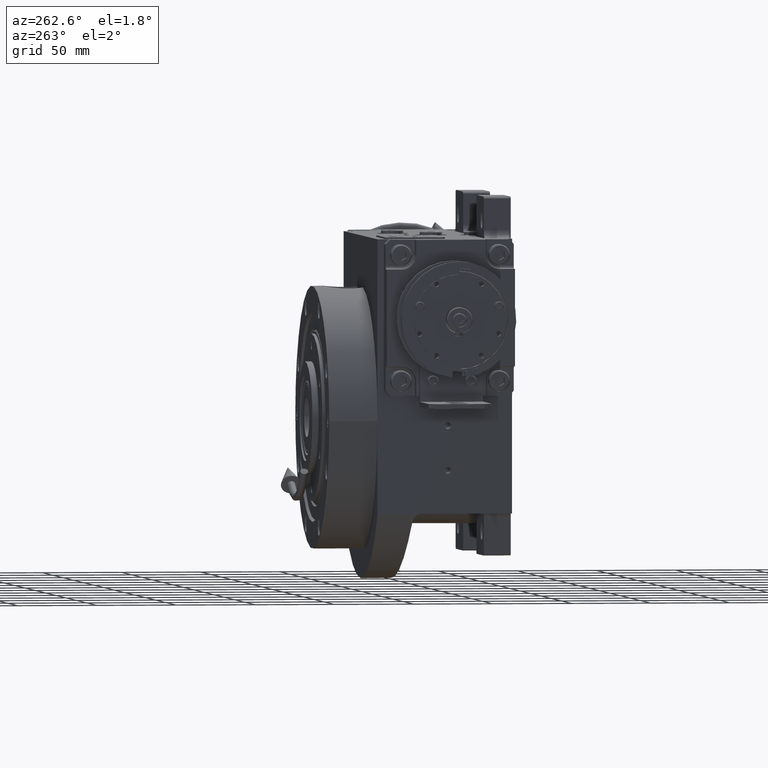
[diagram: clean part render]
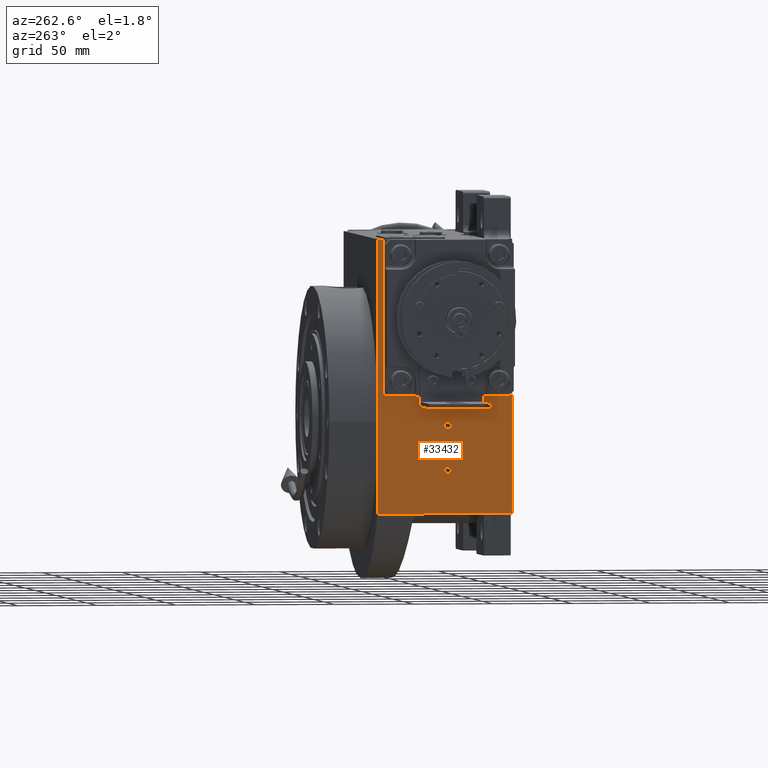
[diagram: same view with one face highlighted and labeled with its STEP entity id]
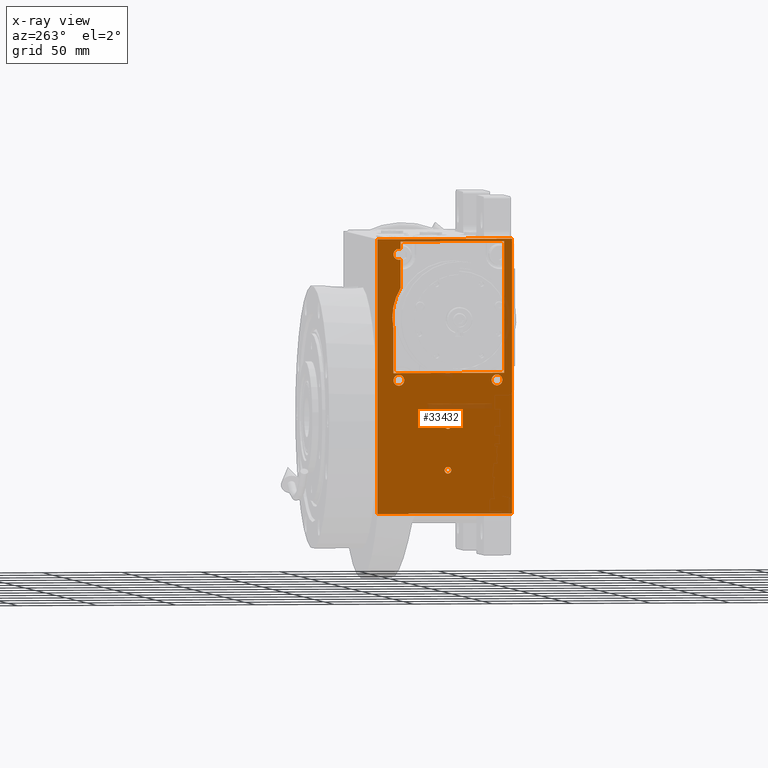
[diagram: x-ray of the same camera — body ghosted, the highlighted face saturated]
A machine part, auxiliary view. The second image highlights one B-rep face of the part: STEP entity #33432.
The next image is the same camera in x-ray: the body ghosted, the highlighted face saturated — about 2% of this face is hidden behind the body in this view.
In plain terms, the highlighted planar face has unit normal (-1, 0, 0).
Its self-contained STEP definition (entity closure, byte-faithful):
#6 = VERTEX_POINT ( 'NONE', #77846 ) ;
#957 = EDGE_CURVE ( 'NONE', #19819, #63341, #46694, .T. ) ;
#1507 = EDGE_CURVE ( 'NONE', #30586, #68291, #85649, .T. ) ;
#2539 = ORIENTED_EDGE ( 'NONE', *, *, #73226, .T. ) ;
#2623 = CARTESIAN_POINT ( 'NONE',  ( -82.49999999999998579, -2.287788930577215323E-09, 29.90816376190140602 ) ) ;
#2908 = AXIS2_PLACEMENT_3D ( 'NONE', #41428, #29656, #61804 ) ;
#3231 = CARTESIAN_POINT ( 'NONE',  ( -82.50000000000000000, 2.220446049250315053E-16, -31.00000000000000000 ) ) ;
#3255 = CARTESIAN_POINT ( 'NONE',  ( -82.49999999999998579, 34.49999998246806143, 58.58309560403285587 ) ) ;
#3499 = DIRECTION ( 'NONE',  ( 0.000000000000000000, 1.000000000000000000, 0.000000000000000000 ) ) ;
#3567 = ORIENTED_EDGE ( 'NONE', *, *, #22349, .T. ) ;
#3826 = DIRECTION ( 'NONE',  ( 0.000000000000000000, -1.000000000000000000, 2.040851148208007998E-15 ) ) ;
#3921 = DIRECTION ( 'NONE',  ( 1.000000000000000000, 0.000000000000000000, 0.000000000000000000 ) ) ;
#4016 = DIRECTION ( 'NONE',  ( 0.000000000000000000, -1.000000000000000000, 0.000000000000000000 ) ) ;
#4045 = DIRECTION ( 'NONE',  ( 0.000000000000000000, 0.000000000000000000, 1.000000000000000000 ) ) ;
#4742 = CARTESIAN_POINT ( 'NONE',  ( -82.50000000000000000, 33.81987246479966558, 74.46412064098198869 ) ) ;
#4854 = DIRECTION ( 'NONE',  ( 1.000000000000000000, 0.000000000000000000, 0.000000000000000000 ) ) ;
#5135 = AXIS2_PLACEMENT_3D ( 'NONE', #37236, #63720, #64555 ) ;
#5156 = VERTEX_POINT ( 'NONE', #54332 ) ;
#5295 = VECTOR ( 'NONE', #57297, 1000.000000000000000 ) ;
#5610 = CARTESIAN_POINT ( 'NONE',  ( -82.49999999999998579, 34.49999998246806143, 58.58309560403285587 ) ) ;
#5798 = ORIENTED_EDGE ( 'NONE', *, *, #53310, .T. ) ;
#6352 = CARTESIAN_POINT ( 'NONE',  ( -82.50000000000000000, 34.19718383847393284, 72.91221821846362161 ) ) ;
#6946 = LINE ( 'NONE', #73347, #61723 ) ;
#6985 = LINE ( 'NONE', #27790, #47606 ) ;
#7185 = CARTESIAN_POINT ( 'NONE',  ( -82.50000000000000000, 34.39999999999999858, 104.5000000000000000 ) ) ;
#7668 = CARTESIAN_POINT ( 'NONE',  ( -82.50000000000000000, 31.00000000000000000, 104.5000000000000000 ) ) ;
#8484 = VERTEX_POINT ( 'NONE', #65034 ) ;
#8747 = VERTEX_POINT ( 'NONE', #9011 ) ;
#8946 = VECTOR ( 'NONE', #3499, 1000.000000000000000 ) ;
#9011 = CARTESIAN_POINT ( 'NONE',  ( -82.50000000000000000, -40.50000000000000000, -58.26448317800490173 ) ) ;
#9135 = CIRCLE ( 'NONE', #34100, 3.400000000000000355 ) ;
#9304 = AXIS2_PLACEMENT_3D ( 'NONE', #7668, #47173, #59309 ) ;
#9395 = ORIENTED_EDGE ( 'NONE', *, *, #12321, .T. ) ;
#9590 = CARTESIAN_POINT ( 'NONE',  ( -82.50000000000000000, 31.00000000000000000, 25.50000000000000000 ) ) ;
#9715 = EDGE_CURVE ( 'NONE', #33448, #30586, #28661, .T. ) ;
#10067 = CARTESIAN_POINT ( 'NONE',  ( -82.50000000000000000, 0.000000000000000000, -3.000000000000000000 ) ) ;
#10301 = VERTEX_POINT ( 'NONE', #62824 ) ;
#10801 = CARTESIAN_POINT ( 'NONE',  ( -82.50000000000000000, 31.00000000000000000, 25.50000000000000000 ) ) ;
#10889 = CARTESIAN_POINT ( 'NONE',  ( -82.50000000000000000, -40.50000000000000000, 114.0000000000000000 ) ) ;
#10904 = VECTOR ( 'NONE', #56387, 1000.000000000000000 ) ;
#11203 = DIRECTION ( 'NONE',  ( 1.000000000000000000, 0.000000000000000000, 0.000000000000000000 ) ) ;
#11530 = CARTESIAN_POINT ( 'NONE',  ( -82.50000000000000000, 2.100000000000000089, -31.00000000000000000 ) ) ;
#11832 = EDGE_CURVE ( 'NONE', #49308, #10301, #56103, .T. ) ;
#12011 = CARTESIAN_POINT ( 'NONE',  ( -82.50000000000000000, -0.8484797869458664543, 29.90810260807950627 ) ) ;
#12321 = EDGE_CURVE ( 'NONE', #34445, #62566, #9135, .T. ) ;
#13305 = CARTESIAN_POINT ( 'NONE',  ( -82.50000000000000000, 30.82821280387737772, 81.84160544062723375 ) ) ;
#13698 = CARTESIAN_POINT ( 'NONE',  ( -82.50000000000000000, -2.100000000000000089, -31.00000000000000000 ) ) ;
#14164 = EDGE_CURVE ( 'NONE', #65506, #8484, #14956, .T. ) ;
#14412 = ORIENTED_EDGE ( 'NONE', *, *, #16906, .F. ) ;
#14515 = PLANE ( 'NONE',  #2908 ) ;
#14801 = CARTESIAN_POINT ( 'NONE',  ( -82.49999999999994316, 34.49999999999999289, 30.00000000000000000 ) ) ;
#14937 = ORIENTED_EDGE ( 'NONE', *, *, #56672, .T. ) ;
#14956 = CIRCLE ( 'NONE', #20457, 3.400000000000000355 ) ;
#15374 = VERTEX_POINT ( 'NONE', #32887 ) ;
#15465 = B_SPLINE_CURVE_WITH_KNOTS ( 'NONE', 3,
 ( #42900, #68482, #42473, #68926 ),
 .UNSPECIFIED., .F., .F.,
 ( 4, 4 ),
 ( 0.4999998433994480851, 0.5230117272803251893 ),
 .UNSPECIFIED. ) ;
#15584 = ORIENTED_EDGE ( 'NONE', *, *, #62468, .T. ) ;
#15780 = ORIENTED_EDGE ( 'NONE', *, *, #14164, .T. ) ;
#15800 = CARTESIAN_POINT ( 'NONE',  ( -82.50000000000000000, -40.50000000000000000, -58.26448317800490173 ) ) ;
#15950 = CIRCLE ( 'NONE', #21436, 2.100000000000000089 ) ;
#16432 = AXIS2_PLACEMENT_3D ( 'NONE', #10067, #75608, #69100 ) ;
#16767 = CARTESIAN_POINT ( 'NONE',  ( -82.50000000000000000, 29.99999999995430500, 101.2503846381596730 ) ) ;
#16906 = EDGE_CURVE ( 'NONE', #23382, #77693, #24253, .T. ) ;
#17051 = DIRECTION ( 'NONE',  ( 1.000000000000000000, 0.000000000000000000, 0.000000000000000000 ) ) ;
#17259 = CARTESIAN_POINT ( 'NONE',  ( -82.49999999999998579, -2.287788930577215323E-09, 29.90816376190140602 ) ) ;
#18094 = CARTESIAN_POINT ( 'NONE',  ( -82.50000000000000000, -1.693856052458887484, 29.93856829000444009 ) ) ;
#18223 = LINE ( 'NONE', #30415, #8946 ) ;
#18886 = CARTESIAN_POINT ( 'NONE',  ( -82.50000000000000000, 34.39999999999999858, 25.50000000000000000 ) ) ;
#19391 = CARTESIAN_POINT ( 'NONE',  ( -82.50000000000000000, 0.000000000000000000, -3.000000000000000000 ) ) ;
#19819 = VERTEX_POINT ( 'NONE', #73414 ) ;
#19825 = DIRECTION ( 'NONE',  ( 0.000000000000000000, 1.000000000000000000, 8.260587980841937794E-16 ) ) ;
#20197 = EDGE_CURVE ( 'NONE', #68291, #22223, #38000, .T. ) ;
#20457 = AXIS2_PLACEMENT_3D ( 'NONE', #57174, #69359, #3826 ) ;
#21436 = AXIS2_PLACEMENT_3D ( 'NONE', #19391, #33711, #19825 ) ;
#21490 = CIRCLE ( 'NONE', #22846, 2.100000000000000089 ) ;
#22143 = DIRECTION ( 'NONE',  ( -0.000000000000000000, 1.000000000000000000, 9.912705577010326782E-17 ) ) ;
#22223 = VERTEX_POINT ( 'NONE', #35009 ) ;
#22349 = EDGE_CURVE ( 'NONE', #74351, #34270, #31046, .T. ) ;
#22760 = AXIS2_PLACEMENT_3D ( 'NONE', #51765, #84721, #78243 ) ;
#22846 = AXIS2_PLACEMENT_3D ( 'NONE', #3231, #4854, #55351 ) ;
#23382 = VERTEX_POINT ( 'NONE', #52825 ) ;
#23555 = CARTESIAN_POINT ( 'NONE',  ( -82.50000000000000000, -31.00000000000000000, 25.50000000000000000 ) ) ;
#24013 = LINE ( 'NONE', #15800, #47815 ) ;
#24253 = LINE ( 'NONE', #43812, #10904 ) ;
#24289 = CARTESIAN_POINT ( 'NONE',  ( -82.50001592521240923, 35.09186693465599660, 64.99999953009820786 ) ) ;
#25062 = EDGE_LOOP ( 'NONE', ( #39889, #68861 ) ) ;
#26299 = CARTESIAN_POINT ( 'NONE',  ( -82.49999999999998579, 34.51516652681750230, 71.34637031958402531 ) ) ;
#27790 = CARTESIAN_POINT ( 'NONE',  ( -82.50000000000000000, 44.50000000000000000, -58.26448317800490173 ) ) ;
#27897 = EDGE_CURVE ( 'NONE', #10301, #6, #77488, .T. ) ;
#28020 = ORIENTED_EDGE ( 'NONE', *, *, #1507, .T. ) ;
#28618 = CIRCLE ( 'NONE', #41153, 3.400000000000000355 ) ;
#28661 = LINE ( 'NONE', #14801, #41149 ) ;
#29457 = VERTEX_POINT ( 'NONE', #13698 ) ;
#29656 = DIRECTION ( 'NONE',  ( -1.000000000000000000, 0.000000000000000000, 0.000000000000000000 ) ) ;
#29747 = DIRECTION ( 'NONE',  ( 0.000000000000000000, 4.048429820936533247E-12, 1.000000000000000000 ) ) ;
#30415 = CARTESIAN_POINT ( 'NONE',  ( -82.50000000000000000, -40.50000000000000000, -58.26448317800490173 ) ) ;
#30586 = VERTEX_POINT ( 'NONE', #49371 ) ;
#31046 = LINE ( 'NONE', #38419, #62885 ) ;
#31445 = CARTESIAN_POINT ( 'NONE',  ( -82.50000000000000000, 29.99999999930853178, -58.26448317829031964 ) ) ;
#31450 = ORIENTED_EDGE ( 'NONE', *, *, #9715, .T. ) ;
#32832 = CARTESIAN_POINT ( 'NONE',  ( -82.50000000000001421, 34.95338893667511826, 68.60145005470212709 ) ) ;
#32841 = EDGE_CURVE ( 'NONE', #84015, #5156, #15950, .T. ) ;
#32887 = CARTESIAN_POINT ( 'NONE',  ( -82.50000025288930772, 16.91834889469715009, -58.26448317800269905 ) ) ;
#33158 = CARTESIAN_POINT ( 'NONE',  ( -82.50000000000000000, 34.49999999999999289, -58.26448317800490173 ) ) ;
#33432 = ADVANCED_FACE ( 'NONE', ( #69163, #74393, #49213, #75677, #40992, #80880 ), #14515, .T. ) ;
#33448 = VERTEX_POINT ( 'NONE', #36181 ) ;
#33711 = DIRECTION ( 'NONE',  ( 1.000000000000000000, 0.000000000000000000, 0.000000000000000000 ) ) ;
#34100 = AXIS2_PLACEMENT_3D ( 'NONE', #9590, #3921, #43016 ) ;
#34114 = CARTESIAN_POINT ( 'NONE',  ( -82.50000000000000000, -34.39999999999999858, 25.50000000000000000 ) ) ;
#34116 = ORIENTED_EDGE ( 'NONE', *, *, #20197, .T. ) ;
#34202 = VERTEX_POINT ( 'NONE', #73230 ) ;
#34270 = VERTEX_POINT ( 'NONE', #16767 ) ;
#34445 = VERTEX_POINT ( 'NONE', #18886 ) ;
#35009 = CARTESIAN_POINT ( 'NONE',  ( -82.50001592521240923, 35.09186693465599660, 64.99999953009820786 ) ) ;
#36181 = CARTESIAN_POINT ( 'NONE',  ( -82.49999999999998579, 2.536110580017757243, 29.99973809516867718 ) ) ;
#36294 = CARTESIAN_POINT ( 'NONE',  ( -82.50000000000000000, -35.50000000000001421, -58.26448317800490173 ) ) ;
#36586 = EDGE_CURVE ( 'NONE', #8747, #72135, #24013, .T. ) ;
#37189 = EDGE_LOOP ( 'NONE', ( #9395, #2539 ) ) ;
#37236 = CARTESIAN_POINT ( 'NONE',  ( -82.50000000000000000, 31.00000000000000000, 104.5000000000000000 ) ) ;
#37556 = DIRECTION ( 'NONE',  ( 0.000000000000000000, 0.000000000000000000, -1.000000000000000000 ) ) ;
#38000 = B_SPLINE_CURVE_WITH_KNOTS ( 'NONE', 3,
 ( #5610, #51212, #84575, #56873 ),
 .UNSPECIFIED., .F., .F.,
 ( 4, 4 ),
 ( 0.9414611157518000262, 1.000000000000000000 ),
 .UNSPECIFIED. ) ;
#38156 = CARTESIAN_POINT ( 'NONE',  ( -82.50000000000000000, 34.44123850593690150, 71.73586743115451725 ) ) ;
#38415 = EDGE_CURVE ( 'NONE', #6, #19819, #6946, .T. ) ;
#38419 = CARTESIAN_POINT ( 'NONE',  ( -82.50000000000000000, 29.99999999930853178, -58.26448317829031964 ) ) ;
#38553 = CARTESIAN_POINT ( 'NONE',  ( -82.50000000000000000, 2.100000000000000089, -3.000000000000000000 ) ) ;
#38957 = VECTOR ( 'NONE', #37556, 1000.000000000000000 ) ;
#39789 = ORIENTED_EDGE ( 'NONE', *, *, #78508, .F. ) ;
#39889 = ORIENTED_EDGE ( 'NONE', *, *, #32841, .T. ) ;
#40077 = ORIENTED_EDGE ( 'NONE', *, *, #53630, .T. ) ;
#40321 = B_SPLINE_CURVE_WITH_KNOTS ( 'NONE', 3,
 ( #24289, #50772, #32832, #77241, #26299, #38156, #6352, #4742, #56841, #72751, #70710, #64643, #13305, #46290 ),
 .UNSPECIFIED., .F., .F.,
 ( 4, 1, 2, 2, 1, 2, 2, 4 ),
 ( 0.000000000000000000, 0.04341200056695342785, 0.05426500070869186981, 0.06511800085043030484, 0.08682400113390723040, 0.1085300014173841560, 0.1302360017008610815, 0.1736480022678149326 ),
 .UNSPECIFIED. ) ;
#40992 = FACE_BOUND ( 'NONE', #75580, .T. ) ;
#41031 = CIRCLE ( 'NONE', #5135, 3.400000000000000355 ) ;
#41049 = ORIENTED_EDGE ( 'NONE', *, *, #11832, .T. ) ;
#41149 = VECTOR ( 'NONE', #22143, 1000.000000000000000 ) ;
#41153 = AXIS2_PLACEMENT_3D ( 'NONE', #23555, #17051, #69130 ) ;
#41428 = CARTESIAN_POINT ( 'NONE',  ( -82.50000000000000000, -40.50000000000000000, -58.26448317800490173 ) ) ;
#42320 = EDGE_CURVE ( 'NONE', #29457, #48105, #60155, .T. ) ;
#42473 = CARTESIAN_POINT ( 'NONE',  ( -82.50000000000000000, 1.693755086050396708, 29.93853868038855026 ) ) ;
#42900 = CARTESIAN_POINT ( 'NONE',  ( -82.49999999999998579, -2.287788930577215323E-09, 29.90816376190140602 ) ) ;
#43016 = DIRECTION ( 'NONE',  ( 0.000000000000000000, 1.000000000000000000, 4.081702296416015997E-15 ) ) ;
#43539 = CARTESIAN_POINT ( 'NONE',  ( -82.50000000000000000, -40.50000000000000000, 112.4999999999999005 ) ) ;
#43647 = CARTESIAN_POINT ( 'NONE',  ( -82.50000000000000000, 44.50000000000000000, 114.0000000000000000 ) ) ;
#43707 = EDGE_LOOP ( 'NONE', ( #39789, #50220, #77114, #14412, #5798 ) ) ;
#43812 = CARTESIAN_POINT ( 'NONE',  ( -82.50000000000000000, 44.50000000000000000, -58.26448317800490173 ) ) ;
#44307 = LINE ( 'NONE', #10889, #5295 ) ;
#45873 = EDGE_CURVE ( 'NONE', #72135, #77693, #44307, .T. ) ;
#45887 = ORIENTED_EDGE ( 'NONE', *, *, #38415, .T. ) ;
#46290 = CARTESIAN_POINT ( 'NONE',  ( -82.49999999999992895, 30.00000000867834160, 83.20545253233554206 ) ) ;
#46694 = B_SPLINE_CURVE_WITH_KNOTS ( 'NONE', 3,
 ( #71455, #18094, #12011, #17259 ),
 .UNSPECIFIED., .F., .F.,
 ( 4, 4 ),
 ( 0.4769927843480992746, 0.4999998433994480851 ),
 .UNSPECIFIED. ) ;
#46797 = EDGE_LOOP ( 'NONE', ( #64617, #60992 ) ) ;
#47173 = DIRECTION ( 'NONE',  ( 1.000000000000000000, 0.000000000000000000, 0.000000000000000000 ) ) ;
#47606 = VECTOR ( 'NONE', #60800, 1000.000000000000000 ) ;
#47815 = VECTOR ( 'NONE', #4045, 1000.000000000000000 ) ;
#48105 = VERTEX_POINT ( 'NONE', #11530 ) ;
#49213 = FACE_BOUND ( 'NONE', #63621, .T. ) ;
#49308 = VERTEX_POINT ( 'NONE', #51530 ) ;
#49371 = CARTESIAN_POINT ( 'NONE',  ( -82.49999999999994316, 34.49999999999999289, 30.00000000000000000 ) ) ;
#50220 = ORIENTED_EDGE ( 'NONE', *, *, #36586, .T. ) ;
#50610 = VECTOR ( 'NONE', #72642, 1000.000000000000000 ) ;
#50772 = CARTESIAN_POINT ( 'NONE',  ( -82.50000000000001421, 35.08975819402670737, 66.61074919782478787 ) ) ;
#51042 = CIRCLE ( 'NONE', #16432, 2.100000000000000089 ) ;
#51212 = CARTESIAN_POINT ( 'NONE',  ( -82.50000000000000000, 34.89175422446747632, 60.68862570184168703 ) ) ;
#51434 = DIRECTION ( 'NONE',  ( 0.000000000000000000, 4.048429820936533247E-12, 1.000000000000000000 ) ) ;
#51530 = CARTESIAN_POINT ( 'NONE',  ( -82.49999999999994316, 29.99999999999985079, 112.4999999999999005 ) ) ;
#51765 = CARTESIAN_POINT ( 'NONE',  ( -82.50000000000000000, 0.000000000000000000, -31.00000000000000000 ) ) ;
#52825 = CARTESIAN_POINT ( 'NONE',  ( -82.50000000000000000, 44.50000000000000000, -58.26448317800490173 ) ) ;
#53310 = EDGE_CURVE ( 'NONE', #23382, #15374, #6985, .T. ) ;
#53630 = EDGE_CURVE ( 'NONE', #22223, #74351, #40321, .T. ) ;
#54332 = CARTESIAN_POINT ( 'NONE',  ( -82.50000000000000000, -2.100000000000000089, -3.000000000000000000 ) ) ;
#55351 = DIRECTION ( 'NONE',  ( 0.000000000000000000, 1.000000000000000000, 0.000000000000000000 ) ) ;
#56103 = LINE ( 'NONE', #43539, #60518 ) ;
#56387 = DIRECTION ( 'NONE',  ( 0.000000000000000000, 0.000000000000000000, 1.000000000000000000 ) ) ;
#56672 = EDGE_CURVE ( 'NONE', #65487, #34202, #41031, .T. ) ;
#56736 = EDGE_CURVE ( 'NONE', #34270, #65487, #82583, .T. ) ;
#56841 = CARTESIAN_POINT ( 'NONE',  ( -82.50000000000000000, 33.33875079034483235, 75.98289247571246108 ) ) ;
#56873 = CARTESIAN_POINT ( 'NONE',  ( -82.50001592521240923, 35.09186693465599660, 64.99999953009820786 ) ) ;
#57174 = CARTESIAN_POINT ( 'NONE',  ( -82.50000000000000000, -31.00000000000000000, 25.50000000000000000 ) ) ;
#57200 = DIRECTION ( 'NONE',  ( 0.000000000000000000, -1.000000000000000000, 0.000000000000000000 ) ) ;
#57297 = DIRECTION ( 'NONE',  ( 0.000000000000000000, 1.000000000000000000, 0.000000000000000000 ) ) ;
#57731 = EDGE_CURVE ( 'NONE', #8484, #65506, #28618, .T. ) ;
#58200 = ORIENTED_EDGE ( 'NONE', *, *, #77651, .T. ) ;
#59309 = DIRECTION ( 'NONE',  ( 0.000000000000000000, -1.000000000000000000, 8.163404592832031993E-15 ) ) ;
#59668 = AXIS2_PLACEMENT_3D ( 'NONE', #10801, #11203, #57200 ) ;
#60155 = CIRCLE ( 'NONE', #22760, 2.100000000000000089 ) ;
#60518 = VECTOR ( 'NONE', #4016, 1000.000000000000000 ) ;
#60800 = DIRECTION ( 'NONE',  ( 0.000000000000000000, -1.000000000000000000, 3.199570353973790170E-13 ) ) ;
#60992 = ORIENTED_EDGE ( 'NONE', *, *, #42320, .T. ) ;
#61723 = VECTOR ( 'NONE', #74634, 1000.000000000000000 ) ;
#61804 = DIRECTION ( 'NONE',  ( 0.000000000000000000, 0.000000000000000000, 1.000000000000000000 ) ) ;
#62212 = ORIENTED_EDGE ( 'NONE', *, *, #57731, .T. ) ;
#62468 = EDGE_CURVE ( 'NONE', #63341, #33448, #15465, .T. ) ;
#62497 = CIRCLE ( 'NONE', #59668, 3.400000000000000355 ) ;
#62566 = VERTEX_POINT ( 'NONE', #84455 ) ;
#62728 = LINE ( 'NONE', #31445, #69777 ) ;
#62824 = CARTESIAN_POINT ( 'NONE',  ( -82.49999999999994316, -35.50000000000001421, 112.4999999999999005 ) ) ;
#62885 = VECTOR ( 'NONE', #51434, 1000.000000000000000 ) ;
#63341 = VERTEX_POINT ( 'NONE', #2623 ) ;
#63621 = EDGE_LOOP ( 'NONE', ( #62212, #15780 ) ) ;
#63720 = DIRECTION ( 'NONE',  ( 1.000000000000000000, 0.000000000000000000, 0.000000000000000000 ) ) ;
#64555 = DIRECTION ( 'NONE',  ( 0.000000000000000000, 1.000000000000000000, 8.163404592832031993E-15 ) ) ;
#64617 = ORIENTED_EDGE ( 'NONE', *, *, #65624, .T. ) ;
#64643 = CARTESIAN_POINT ( 'NONE',  ( -82.50000000000001421, 31.55988692787888183, 80.42704711027523956 ) ) ;
#65034 = CARTESIAN_POINT ( 'NONE',  ( -82.50000000000000000, -27.59999999999999787, 25.50000000000000000 ) ) ;
#65487 = VERTEX_POINT ( 'NONE', #7185 ) ;
#65506 = VERTEX_POINT ( 'NONE', #34114 ) ;
#65624 = EDGE_CURVE ( 'NONE', #48105, #29457, #21490, .T. ) ;
#67068 = ORIENTED_EDGE ( 'NONE', *, *, #56736, .T. ) ;
#68024 = ORIENTED_EDGE ( 'NONE', *, *, #957, .T. ) ;
#68291 = VERTEX_POINT ( 'NONE', #3255 ) ;
#68482 = CARTESIAN_POINT ( 'NONE',  ( -82.50000000000000000, 0.8486577177730606492, 29.90807645585264751 ) ) ;
#68861 = ORIENTED_EDGE ( 'NONE', *, *, #83463, .T. ) ;
#68926 = CARTESIAN_POINT ( 'NONE',  ( -82.49999999999998579, 2.536110580017757243, 29.99973809516867718 ) ) ;
#69100 = DIRECTION ( 'NONE',  ( 0.000000000000000000, -1.000000000000000000, -8.260587980841937794E-16 ) ) ;
#69130 = DIRECTION ( 'NONE',  ( 0.000000000000000000, 1.000000000000000000, 2.040851148208007998E-15 ) ) ;
#69163 = FACE_BOUND ( 'NONE', #46797, .T. ) ;
#69269 = ORIENTED_EDGE ( 'NONE', *, *, #27897, .T. ) ;
#69359 = DIRECTION ( 'NONE',  ( 1.000000000000000000, 0.000000000000000000, 0.000000000000000000 ) ) ;
#69777 = VECTOR ( 'NONE', #29747, 1000.000000000000000 ) ;
#70710 = CARTESIAN_POINT ( 'NONE',  ( -82.50000000000000000, 32.51271328321007559, 78.22921750601831548 ) ) ;
#71455 = CARTESIAN_POINT ( 'NONE',  ( -82.49999999999998579, -2.536110197828791879, 29.99974328708440652 ) ) ;
#72135 = VERTEX_POINT ( 'NONE', #81748 ) ;
#72642 = DIRECTION ( 'NONE',  ( 0.000000000000000000, 0.000000000000000000, 1.000000000000000000 ) ) ;
#72751 = CARTESIAN_POINT ( 'NONE',  ( -82.50000000000001421, 32.80572396549969483, 77.48509901654912824 ) ) ;
#73226 = EDGE_CURVE ( 'NONE', #62566, #34445, #62497, .T. ) ;
#73230 = CARTESIAN_POINT ( 'NONE',  ( -82.50000000000000000, 29.99999999998061995, 107.7496153618484129 ) ) ;
#73347 = CARTESIAN_POINT ( 'NONE',  ( -82.50000000000000000, -40.50000000000000711, 29.99999999999997868 ) ) ;
#73414 = CARTESIAN_POINT ( 'NONE',  ( -82.49999999999998579, -2.536110197828791879, 29.99974328708440652 ) ) ;
#74351 = VERTEX_POINT ( 'NONE', #74962 ) ;
#74393 = FACE_BOUND ( 'NONE', #25062, .T. ) ;
#74634 = DIRECTION ( 'NONE',  ( 0.000000000000000000, 1.000000000000000000, 9.912705577010326782E-17 ) ) ;
#74962 = CARTESIAN_POINT ( 'NONE',  ( -82.49999999999992895, 30.00000000867834160, 83.20545253233554206 ) ) ;
#75580 = EDGE_LOOP ( 'NONE', ( #40077, #3567, #67068, #14937, #58200, #41049, #69269, #45887, #68024, #15584, #31450, #28020, #34116 ) ) ;
#75608 = DIRECTION ( 'NONE',  ( 1.000000000000000000, 0.000000000000000000, 0.000000000000000000 ) ) ;
#75677 = FACE_BOUND ( 'NONE', #37189, .T. ) ;
#77114 = ORIENTED_EDGE ( 'NONE', *, *, #45873, .T. ) ;
#77241 = CARTESIAN_POINT ( 'NONE',  ( -82.50000000000001421, 34.64992140259015940, 70.56373136107519883 ) ) ;
#77488 = LINE ( 'NONE', #36294, #38957 ) ;
#77651 = EDGE_CURVE ( 'NONE', #34202, #49308, #62728, .T. ) ;
#77693 = VERTEX_POINT ( 'NONE', #43647 ) ;
#77846 = CARTESIAN_POINT ( 'NONE',  ( -82.49999999999994316, -35.50000000000001421, 29.99999999999999289 ) ) ;
#78243 = DIRECTION ( 'NONE',  ( 0.000000000000000000, -1.000000000000000000, -3.304235192336775117E-15 ) ) ;
#78508 = EDGE_CURVE ( 'NONE', #8747, #15374, #18223, .T. ) ;
#80880 = FACE_OUTER_BOUND ( 'NONE', #43707, .T. ) ;
#81748 = CARTESIAN_POINT ( 'NONE',  ( -82.50000000000000000, -40.50000000000000000, 114.0000000000000000 ) ) ;
#82583 = CIRCLE ( 'NONE', #9304, 3.400000000000000355 ) ;
#83463 = EDGE_CURVE ( 'NONE', #5156, #84015, #51042, .T. ) ;
#84015 = VERTEX_POINT ( 'NONE', #38553 ) ;
#84455 = CARTESIAN_POINT ( 'NONE',  ( -82.50000000000000000, 27.59999999999999787, 25.50000000000000000 ) ) ;
#84575 = CARTESIAN_POINT ( 'NONE',  ( -82.50000000000000000, 35.08908161204363552, 62.82758922879240515 ) ) ;
#84721 = DIRECTION ( 'NONE',  ( 1.000000000000000000, 0.000000000000000000, 0.000000000000000000 ) ) ;
#85649 = LINE ( 'NONE', #33158, #50610 ) ;